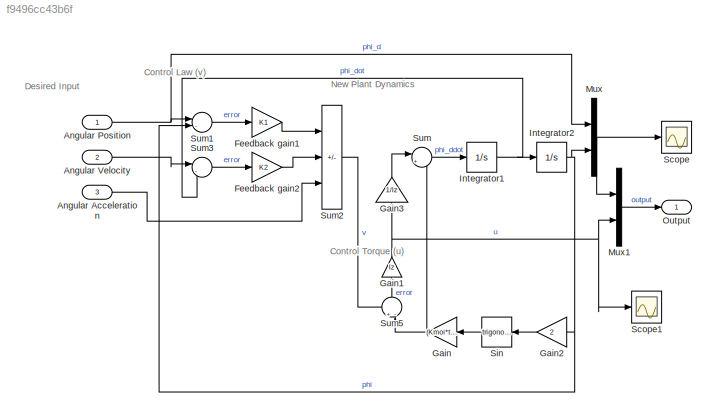
MODEL slx_f9496cc43b6f
KIND model
CONFIG AbsTol = auto
CONFIG EnableMultiTasking = off
CONFIG FixedStep = auto
CONFIG MaxStep = auto
CONFIG MinStep = auto
CONFIG RelTol = R_tol
CONFIG SampleTimeConstraint = Unconstrained
CONFIG SolverName = VariableStepAuto
CONFIG StartTime = 0
CONFIG StopTime = 10
BLOCK [Inport] Angular Acceleration
  Port = 3
BLOCK [Inport] Angular Position
BLOCK [Inport] Angular Velocity
  Port = 2
BLOCK [Gain] Feedback gain1
  Gain = K1
BLOCK [Gain] Feedback gain2
  Gain = K2
BLOCK [Gain] Gain
  Gain = (Kmoi*theta_dot^2*Iry^2)/2
BLOCK [Gain] Gain1
  Gain = Iz
  NameLocation = right
BLOCK [Gain] Gain2
  Gain = 2
BLOCK [Gain] Gain3
  Gain = 1/Iz
  NameLocation = right
BLOCK [Integrator] Integrator1
  Ports = [1, 1]
BLOCK [Integrator] Integrator2
  Ports = [1, 1]
BLOCK [Mux] Mux
  DisplayOption = bar
  Inputs = 2
  Ports = [2, 1]
BLOCK [Mux] Mux1
  DisplayOption = bar
  Inputs = 2
  Ports = [2, 1]
BLOCK [Outport] Output
BLOCK [Scope] Scope
  Floating = off
  NumInputPorts = 1
  Ports = [1]
  ScopeSpecificationString = Simulink.scopes.TimeScopeBlockCfg('CurrentConfiguration', extmgr.ConfigurationSet(extmgr.Configuration('Core','General UI',true),extmgr.Configuration('Core','Source UI',true),extmgr.Configuration('Sources','WiredSimulink',true),extmgr.Configuration('Visuals','Time Domain',true,'SerializedDisplays',{struct('MinYLimReal','31.90824','MaxYLimReal','32.61967','YLabelReal','','MinYLimMag','31.90824','Ma...<+1409ch>
BLOCK [Scope] Scope1
  Floating = off
  NumInputPorts = 1
  Ports = [1]
  ScopeSpecificationString = Simulink.scopes.TimeScopeBlockCfg('CurrentConfiguration', extmgr.ConfigurationSet(extmgr.Configuration('Core','General UI',true),extmgr.Configuration('Core','Source UI',true),extmgr.Configuration('Sources','WiredSimulink',true,'DataLoggingVariableName','ScopeData1'),extmgr.Configuration('Visuals','Time Domain',true,'SerializedDisplays',{struct('MinYLimReal','0.0142853','MaxYLimReal','0.0142941','Y...<+1446ch>
BLOCK [Trigonometry] Sin
  Ports = [1, 1]
BLOCK [Sum] Sum
  Inputs = |++
  Ports = [2, 1]
BLOCK [Sum] Sum1
  Inputs = |-+
  Ports = [2, 1]
BLOCK [Sum] Sum2
  IconShape = rectangular
  Inputs = --+
  Ports = [3, 1]
BLOCK [Sum] Sum3
  Inputs = |-+
  Ports = [2, 1]
BLOCK [Sum] Sum5
  Inputs = +-|
  NameLocation = right
  Ports = [2, 1]
ANNOTATION (root): Control Law (v)
ANNOTATION (root): Control Torque (u)
ANNOTATION (root): Desired Input
ANNOTATION (root): New Plant Dynamics
LINE Angular Acceleration:1 -> Sum2:3
NET Angular Position:1 -> Mux:1, Sum1:1
LINE Angular Velocity:1 -> Sum3:1
LINE Feedback gain1:1 -> Sum2:1
LINE Feedback gain2:1 -> Sum2:2
NET Gain1:1 -> Gain3:1, Mux1:2, Scope1:1
LINE Gain2:1 -> Sin:1
LINE Gain3:1 -> Sum:1
NET Gain:1 -> Sum5:2, Sum:2
NET Integrator1:1 -> Integrator2:1, Sum3:2
NET Integrator2:1 -> Gain2:1, Mux:2, Sum1:2
LINE Mux1:1 -> Output:1
NET Mux:1 -> Mux1:1, Scope:1
LINE Sin:1 -> Gain:1
LINE Sum1:1 -> Feedback gain1:1
LINE Sum2:1 -> Sum5:1
LINE Sum3:1 -> Feedback gain2:1
LINE Sum5:1 -> Gain1:1
LINE Sum:1 -> Integrator1:1
note: NET lines group one-source signal fan-out (src -> all destinations, sorted); 1:1 wires keep LINE
